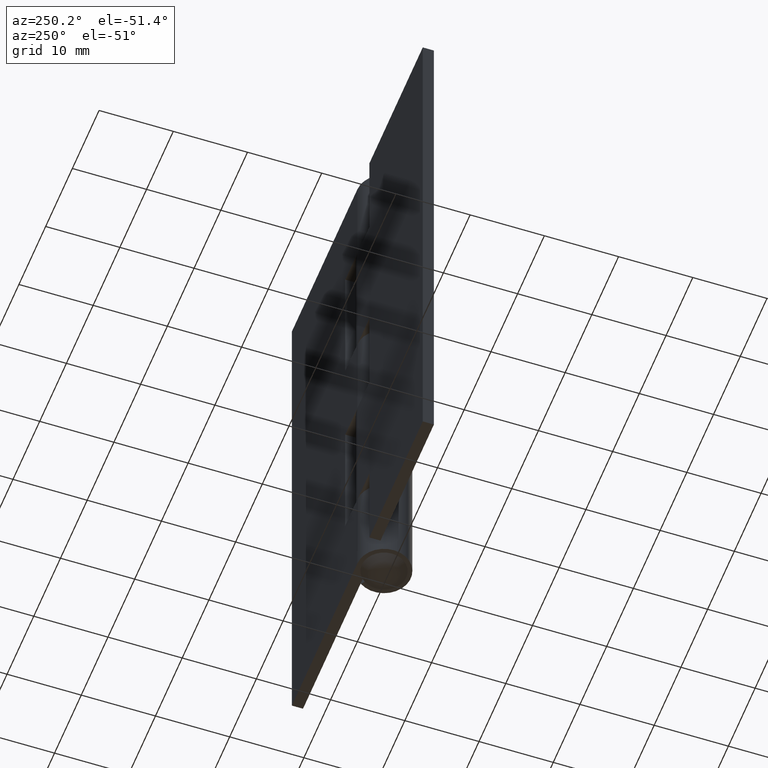
[diagram: clean part render]
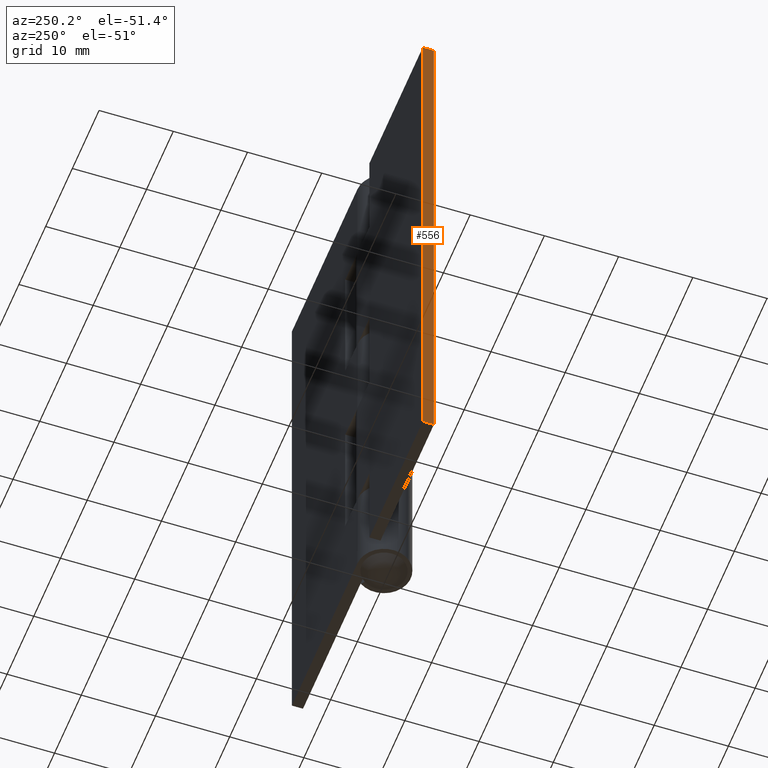
[diagram: same view with one face highlighted and labeled with its STEP entity id]
A machine part, auxiliary view. The second image highlights one B-rep face of the part: STEP entity #556.
In plain terms, the highlighted face is a freeform B-spline surface patch.
Its self-contained STEP definition (entity closure, byte-faithful):
#487=CARTESIAN_POINT('',(-24.500007999999951,2.099997999999970,0.0));
#488=VERTEX_POINT('',#487);
#494=CARTESIAN_POINT('',(-24.500007999999951,3.599998000000000,0.0));
#495=VERTEX_POINT('',#494);
#496=CARTESIAN_POINT('',(-24.500007999999951,3.599998000000000,0.0));
#497=CARTESIAN_POINT('',(-24.500007999999951,2.099997999999970,0.0));
#498=QUASI_UNIFORM_CURVE('',1,(#496,#497),.UNSPECIFIED.,.F.,.U.);
#499=EDGE_CURVE('',#495,#488,#498,.T.);
#514=CARTESIAN_POINT('',(-24.500007999999951,2.099997999999970,76.000008000000093));
#515=VERTEX_POINT('',#514);
#522=CARTESIAN_POINT('',(-24.500007999999951,3.599998000000000,76.000008000000093));
#523=VERTEX_POINT('',#522);
#529=CARTESIAN_POINT('',(-24.500007999999951,3.599998000000000,76.000008000000093));
#530=CARTESIAN_POINT('',(-24.500007999999951,2.099997999999970,76.000008000000093));
#531=QUASI_UNIFORM_CURVE('',1,(#529,#530),.UNSPECIFIED.,.F.,.U.);
#532=EDGE_CURVE('',#523,#515,#531,.T.);
#537=CARTESIAN_POINT('',(-24.500007999999951,2.025073002907260,79.796208252297319));
#538=CARTESIAN_POINT('',(-24.500007999999951,2.025073002907260,-3.796202290776310));
#539=CARTESIAN_POINT('',(-24.500007999999951,3.674923037325847,79.796208252297319));
#540=CARTESIAN_POINT('',(-24.500007999999951,3.674923037325847,-3.796202290776310));
#541=B_SPLINE_SURFACE_WITH_KNOTS('',1,1,((#537,#539),(#538,#540)),.UNSPECIFIED.,.F.,.F.,.U.,(2,2),(2,2),(0.0,83.592410543073626),(0.041708334948495,0.958291687403247),.UNSPECIFIED.);
#542=ORIENTED_EDGE('',*,*,#499,.T.);
#543=CARTESIAN_POINT('',(-24.500007999999951,2.099997999999970,76.000008000000093));
#544=CARTESIAN_POINT('',(-24.500007999999951,2.099997999999970,0.0));
#545=QUASI_UNIFORM_CURVE('',1,(#543,#544),.UNSPECIFIED.,.F.,.U.);
#546=EDGE_CURVE('',#515,#488,#545,.T.);
#547=ORIENTED_EDGE('',*,*,#546,.F.);
#548=ORIENTED_EDGE('',*,*,#532,.F.);
#549=CARTESIAN_POINT('',(-24.500007999999951,3.599998000000000,76.000008000000093));
#550=CARTESIAN_POINT('',(-24.500007999999951,3.599998000000000,0.0));
#551=QUASI_UNIFORM_CURVE('',1,(#549,#550),.UNSPECIFIED.,.F.,.U.);
#552=EDGE_CURVE('',#523,#495,#551,.T.);
#553=ORIENTED_EDGE('',*,*,#552,.T.);
#554=EDGE_LOOP('',(#542,#547,#548,#553));
#555=FACE_OUTER_BOUND('',#554,.T.);
#556=ADVANCED_FACE('',(#555),#541,.F.);